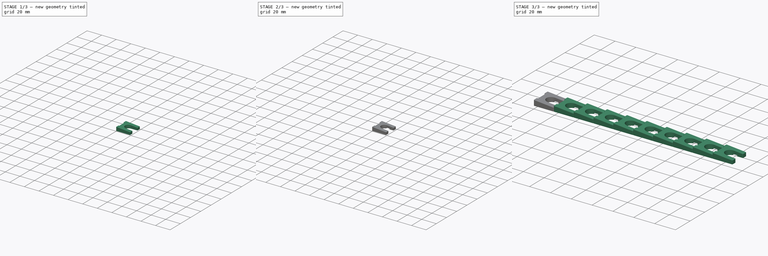
[diagram: build sequence overview — one tinted view per stage of 3, left to right]
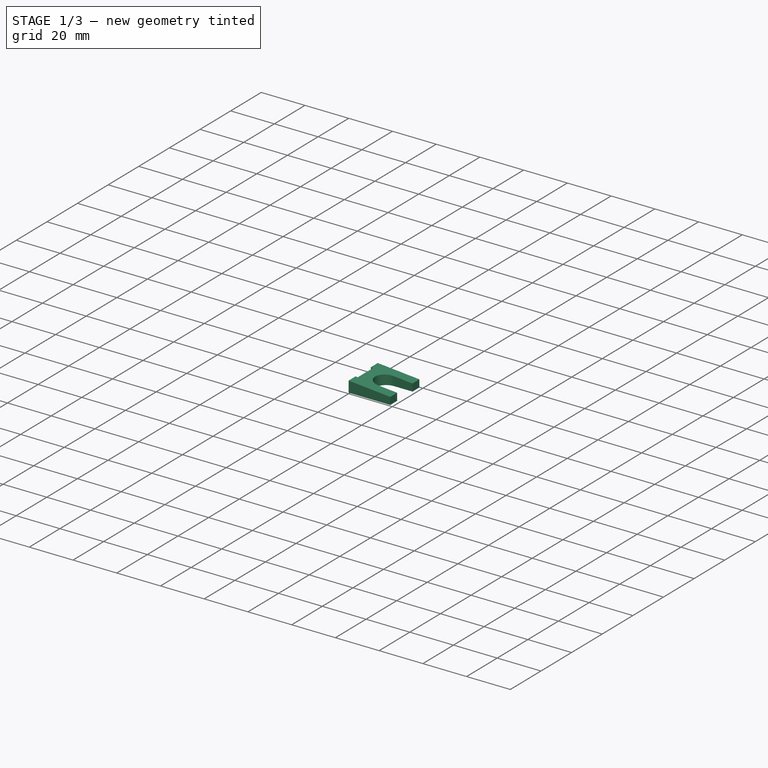
[diagram: stage 1 of 3 — iso view after this stage's code; geometry added in this stage tinted green]
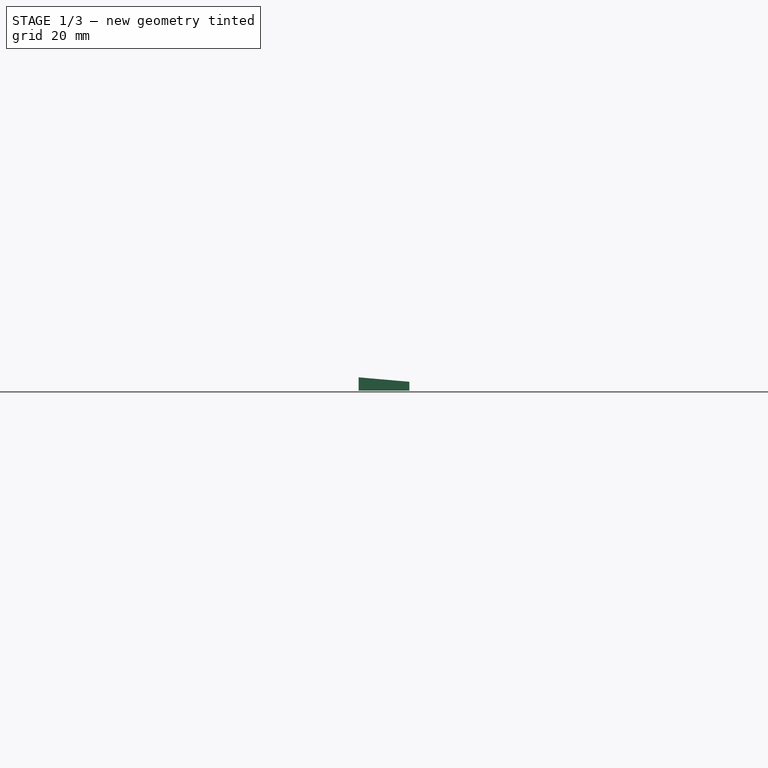
[diagram: stage 1 of 3 — front view after this stage's code; geometry added in this stage tinted green]
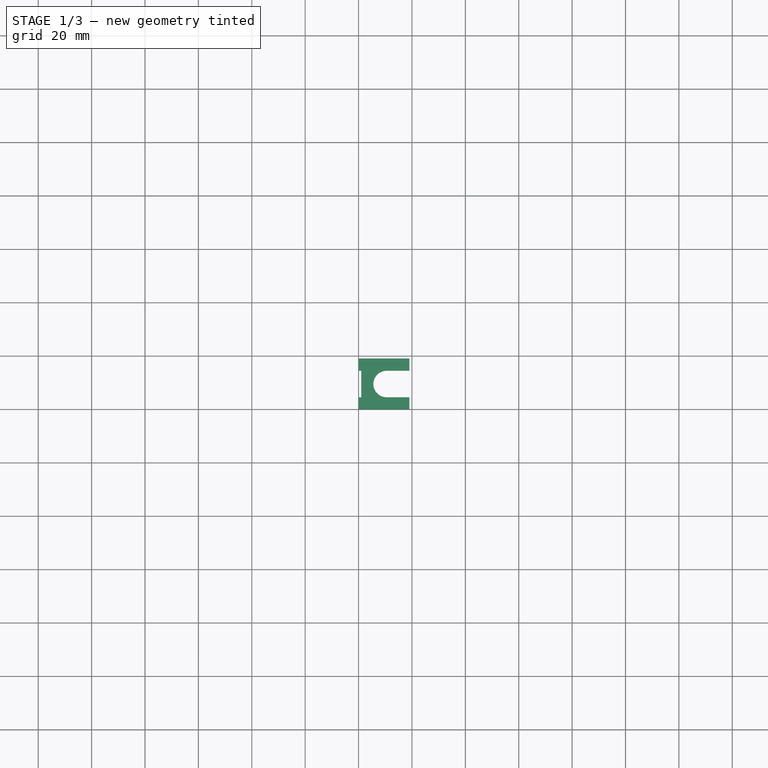
[diagram: stage 1 of 3 — top view after this stage's code; geometry added in this stage tinted green]
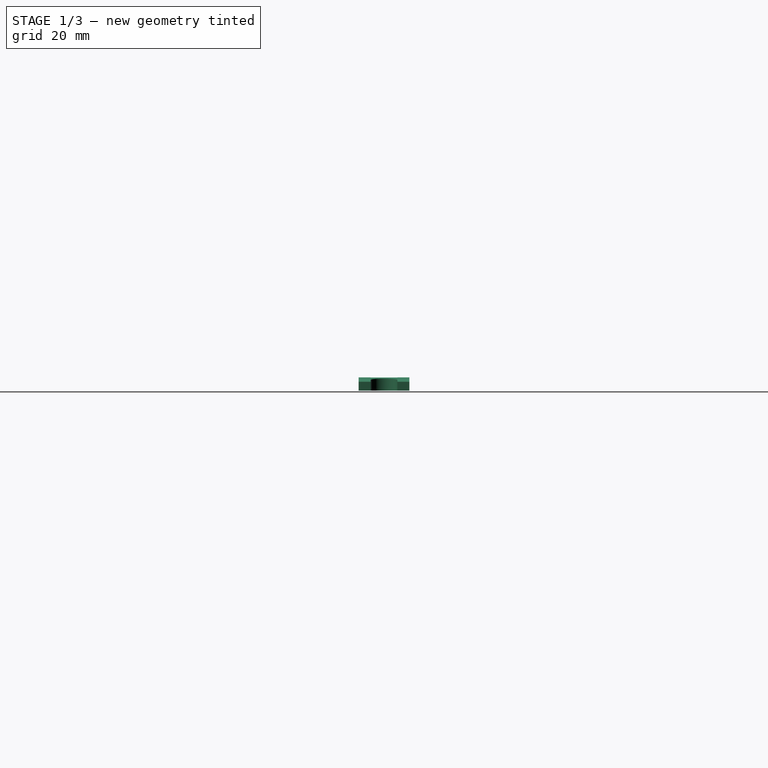
[diagram: stage 1 of 3 — right view after this stage's code; geometry added in this stage tinted green]
FCSTD DOCUMENT  (FreeCAD 0.21R33668 +26 (Git))
Label: ConsoleKeyPads
License: All rights reserved
LicenseURL: http://en.wikipedia.org/wiki/All_rights_reserved
objects: Sketcher::SketchObject×3, Part::FeaturePython×2, PartDesign::Pocket×2, PartDesign::Pad×1, PartDesign::Draft×1, PartDesign::Fillet×1, PartDesign::Body×1
note: 16 computed .brp shape members not serialized (recipe doc carries the construction recipe); baked Part::Feature solids carry a one-line shape summary decoded from their .brp

FEATURE [Sketcher::SketchObject] Sketch
  FullyConstrained = true
  MapMode = 5
  Support = -> [XY_Plane]
  expr: Constraints[10] = 9.53 + 1
  sketch-geometry (12):
    g0: LineSegment StartX=0 StartY=19.05 StartZ=0 EndX=19.05 EndY=19.05 EndZ=0
    g1: ArcOfCircle CenterX=10.53 CenterY=9.525 CenterZ=0 NormalX=0 NormalY=0 NormalZ=1 AngleXU=0 Radius=5 StartAngle=1.5708 EndAngle=4.71239
    g2: LineSegment StartX=19.05 StartY=0 StartZ=0 EndX=0 EndY=0 EndZ=0
    g3: LineSegment StartX=19.05 StartY=19.05 StartZ=0 EndX=19.05 EndY=14.525 EndZ=0
    g4: LineSegment StartX=19.05 StartY=14.525 StartZ=0 EndX=10.53 EndY=14.525 EndZ=0
    g5: LineSegment StartX=19.05 StartY=4.525 StartZ=0 EndX=19.05 EndY=0 EndZ=0
    g6: LineSegment StartX=10.53 StartY=4.525 StartZ=0 EndX=19.05 EndY=4.525 EndZ=0
    g7: LineSegment StartX=0 StartY=14.525 StartZ=0 EndX=0 EndY=19.05 EndZ=0
    g8: LineSegment StartX=1 StartY=14.525 StartZ=0 EndX=0 EndY=14.525 EndZ=0
    g9: LineSegment StartX=1 StartY=4.525 StartZ=0 EndX=1 EndY=14.525 EndZ=0
    g10: LineSegment StartX=0 StartY=0 StartZ=0 EndX=0 EndY=4.525 EndZ=0
    g11: LineSegment StartX=0 StartY=4.525 StartZ=0 EndX=1 EndY=4.525 EndZ=0
  constraints (36):
    c: Coincident(g-1,g10)
    c: PointOnObject(g7,g-2)
    c: Coincident(g7,g0)
    c: Horizontal(g0)
    c: Coincident(g0,g3)
    c: PointOnObject(g5,g-1)
    c: Coincident(g5,g2)
    c: Coincident(g2,g10)
    c: Vertical(g1,g1)
    c: DistanceY(g10,g7) = 19.05
    c: DistanceX(g10,g1) = 10.53
    c: Coincident(g3,g4)
    c: Vertical(g3)
    c: Horizontal(g4)
    c: Coincident(g6,g5)
    c: Vertical(g5)
    c: Horizontal(g6)
    c: Vertical(g3,g5)
    c: DistanceY(g6,g4) = 10
    c: Equal(g3,g5)
    c: Vertical(g1,g1)
    c: Coincident(g4,g1)
    c: Coincident(g1,g6)
    c: Coincident(g8,g7)
    c: Coincident(g9,g8)
    c: Coincident(g11,g9)
    c: Coincident(g10,g11)
    c: Horizontal(g8)
    c: Horizontal(g11)
    c: Vertical(g9)
    c: Horizontal(g8,g1)
    c: Horizontal(g9,g1)
    c: DistanceX(g8,g8) = 1
    c: Vertical(g7)
    c: Vertical(g10)
    c: DistanceX(g2,g2) = 19.05
FEATURE [PartDesign::Pad] Pad
  Direction = (0,0,1)
  Length = 5
  Length2 = 10
  Profile = -> Sketch
  ReferenceAxis = -> Sketch [N_Axis]
  Type = 0
FEATURE [PartDesign::Draft] Draft
  Angle = 5
  Base = -> Pad [Face14]
  BaseFeature = -> Pad
  NeutralPlane = -> Pad [Face12]
  Reversed = true
  SupportTransform = false
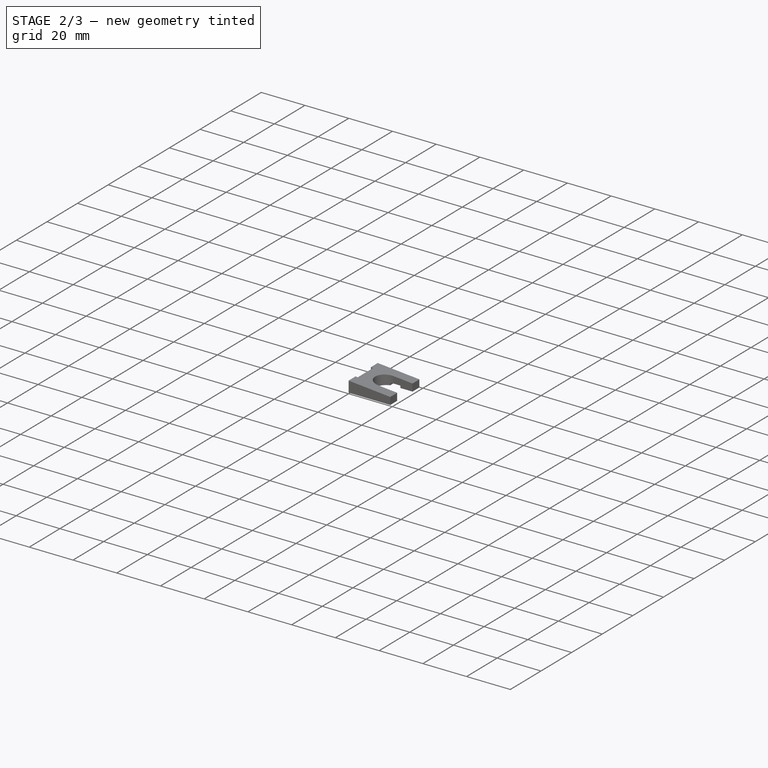
[diagram: stage 2 of 3 — iso view after this stage's code; geometry added in this stage tinted green]
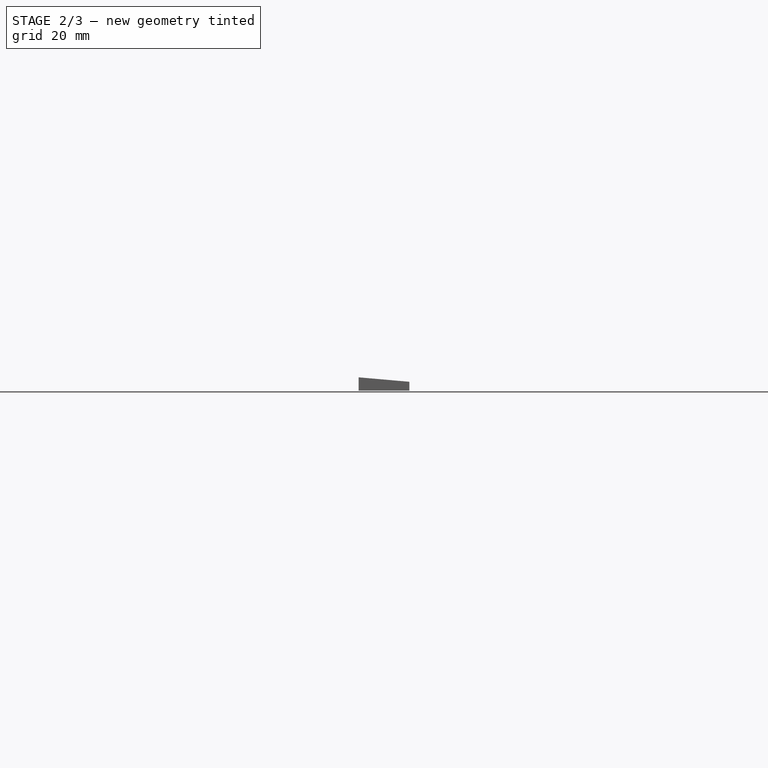
[diagram: stage 2 of 3 — front view after this stage's code; geometry added in this stage tinted green]
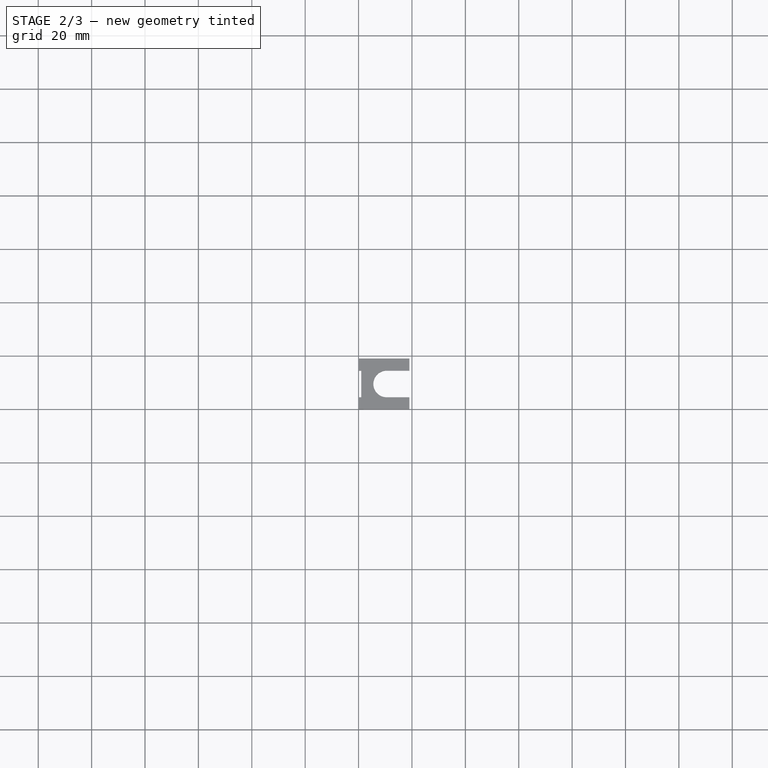
[diagram: stage 2 of 3 — top view after this stage's code; geometry added in this stage tinted green]
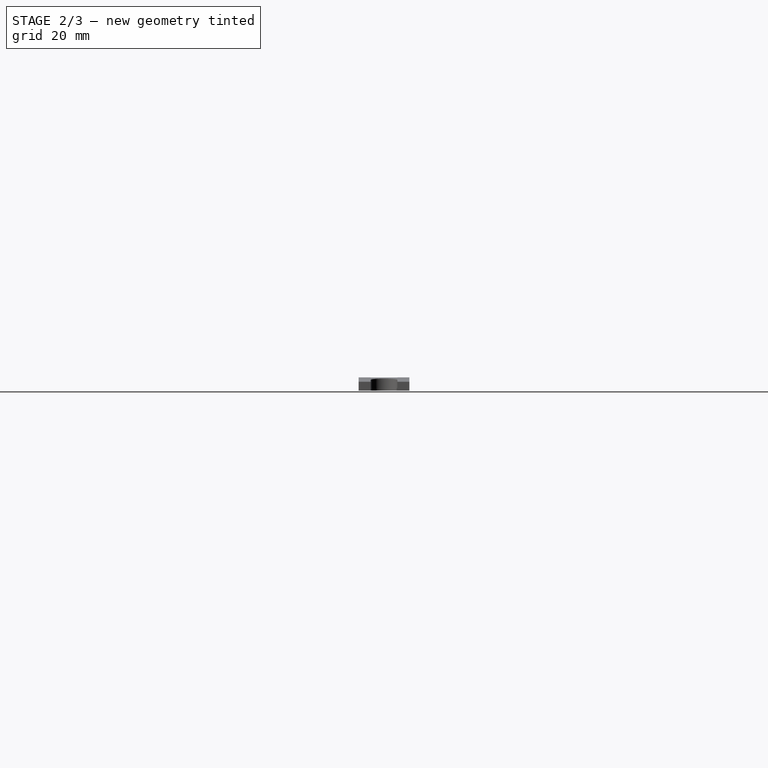
[diagram: stage 2 of 3 — right view after this stage's code; geometry added in this stage tinted green]
FEATURE [Part::FeaturePython] LinearArray  # WARN: FeaturePython — macro-defined, semantics opaque (R4)
  Alignment = 0
  CellStart = A1
  Count = 10
  Dir = (1,0,0)
  DirIsDriven = true
  DistributionLaw = 0
  DrivenProperty = 1
  EndInclusive = true
  ExposePlacement = false
  GeneratorMode = 1
  MarkerShape = 1
  MarkerSize = 0
  NumElements = 10
  OrientMode = 1
  Point = (0,0,0)
  PointIsDriven = true
  Reverse = false
  SpanEnd = 20
  SpanStart = 0
  Step = 19.05
  Type = lattice2LinearArray.LinearArray
  VSGVersion = 1
  Values = 0.0 | 19.05 | 38.1 | 57.150000000000006 | 76.2 | 95.25 | 114.30000000000001 | 133.35 | 152.4 | 171.45000000000002
  ValuesSource = 2
  isLattice = 1
FEATURE [Sketcher::SketchObject] Sketch001  label="LedRecessSketch"
  FullyConstrained = true
  MapMode = 5
  Placement = pos=(0,0,0) rot=(1,0,0;3.14159rad)
  sketch-geometry (4):
    g0: LineSegment StartX=9.025 StartY=-19.05 StartZ=0 EndX=13.525 EndY=-19.05 EndZ=0
    g1: LineSegment StartX=13.525 StartY=-19.05 StartZ=0 EndX=13.525 EndY=-13.525 EndZ=0
    g2: LineSegment StartX=13.525 StartY=-13.525 StartZ=0 EndX=9.025 EndY=-13.525 EndZ=0
    g3: LineSegment StartX=9.025 StartY=-13.525 StartZ=0 EndX=9.025 EndY=-19.05 EndZ=0
  constraints (12):
    c: Coincident(g0,g1)
    c: Coincident(g1,g2)
    c: Coincident(g2,g3)
    c: Coincident(g3,g0)
    c: Horizontal(g0)
    c: Horizontal(g2)
    c: Vertical(g1)
    c: Vertical(g3)
    c: DistanceY(g0,g-1) = 19.05
    c: DistanceY(g2,g-1) = 13.525
    c: DistanceX(g0,g0) = 4.5
    c: DistanceX(g-1,g2) = 9.025
FEATURE [Sketcher::SketchObject] Sketch002
  ExternalGeometry = -> [Draft]
  FullyConstrained = true
  MapMode = 5
  Placement = pos=(0.43412,0,4.96202) rot=(0,1,0;0.087266rad)
  Support = -> [Draft]
  sketch-geometry (4):
    g0: ArcOfCircle CenterX=10.1344 CenterY=9.525 CenterZ=0 NormalX=0 NormalY=0 NormalZ=1 AngleXU=0 Radius=5 StartAngle=1.5708 EndAngle=4.71238
    g1: LineSegment StartX=10.1344 StartY=14.525 StartZ=0 EndX=18.687 EndY=14.525 EndZ=0
    g2: LineSegment StartX=18.687 StartY=14.525 StartZ=0 EndX=18.687 EndY=4.525 EndZ=0
    g3: LineSegment StartX=18.687 StartY=4.525 StartZ=0 EndX=10.1344 EndY=4.525 EndZ=0
  constraints (9):
    c: Coincident(g0,g-3)
    c: Coincident(g0,g-4)
    c: Tangent(g0,g1) = 1.5708
    c: Coincident(g1,g2)
    c: Coincident(g2,g-5)
    c: Vertical(g2)
    c: Coincident(g2,g3)
    c: Coincident(g3,g0)
    c: Horizontal(g3)
FEATURE [PartDesign::Pocket] Pocket001
  BaseFeature = -> Draft
  Direction = (-0.0871557,0,-0.996195)
  Length = 5
  Length2 = 5
  Profile = -> Sketch002
  ReferenceAxis = -> Sketch002 [N_Axis]
  Type = 1
FEATURE [PartDesign::Pocket] Pocket  label="LedRecessPocket"
  BaseFeature = -> Pocket001
  Direction = (0,0,1)
  Length = 1
  Length2 = 5
  Profile = -> Sketch001
  ReferenceAxis = -> Sketch001 [N_Axis]
  Refine = true
  Type = 0
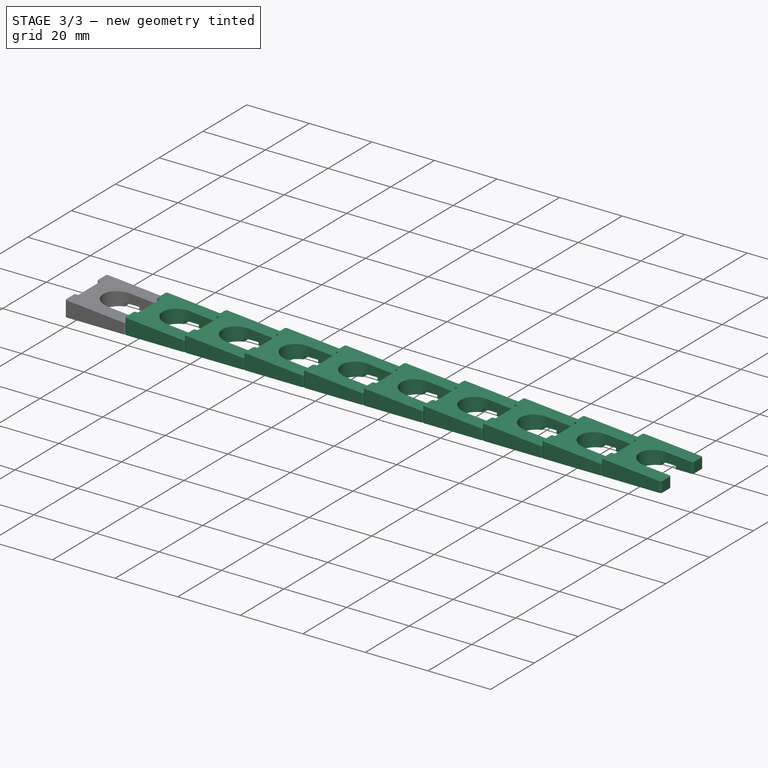
[diagram: stage 3 of 3 — iso view after this stage's code; geometry added in this stage tinted green]
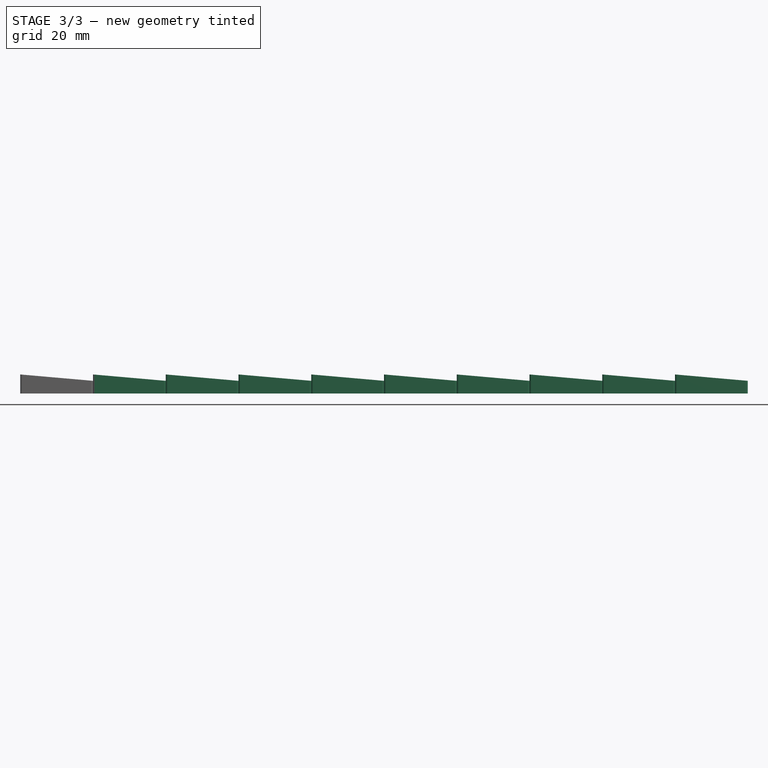
[diagram: stage 3 of 3 — front view after this stage's code; geometry added in this stage tinted green]
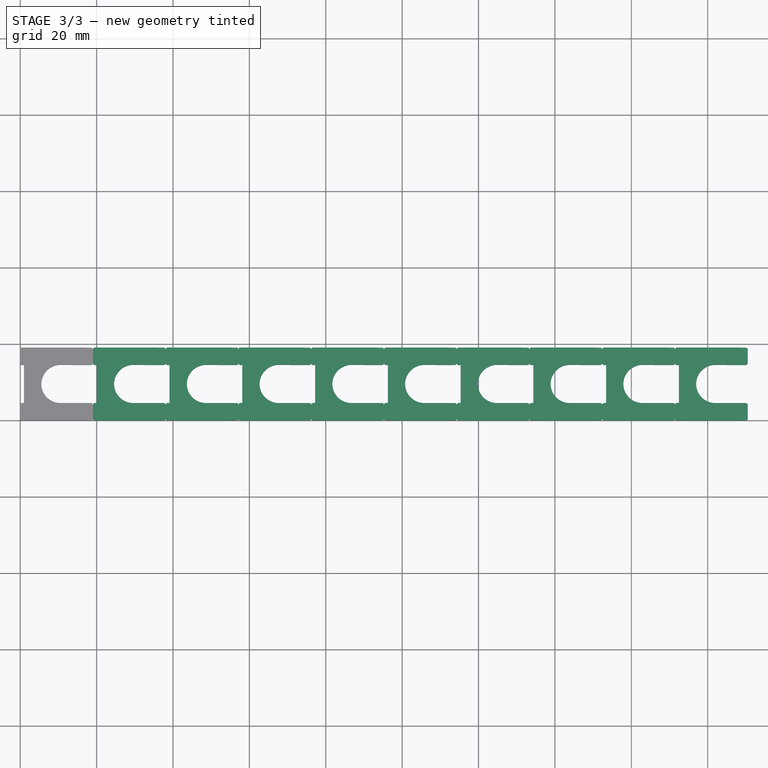
[diagram: stage 3 of 3 — top view after this stage's code; geometry added in this stage tinted green]
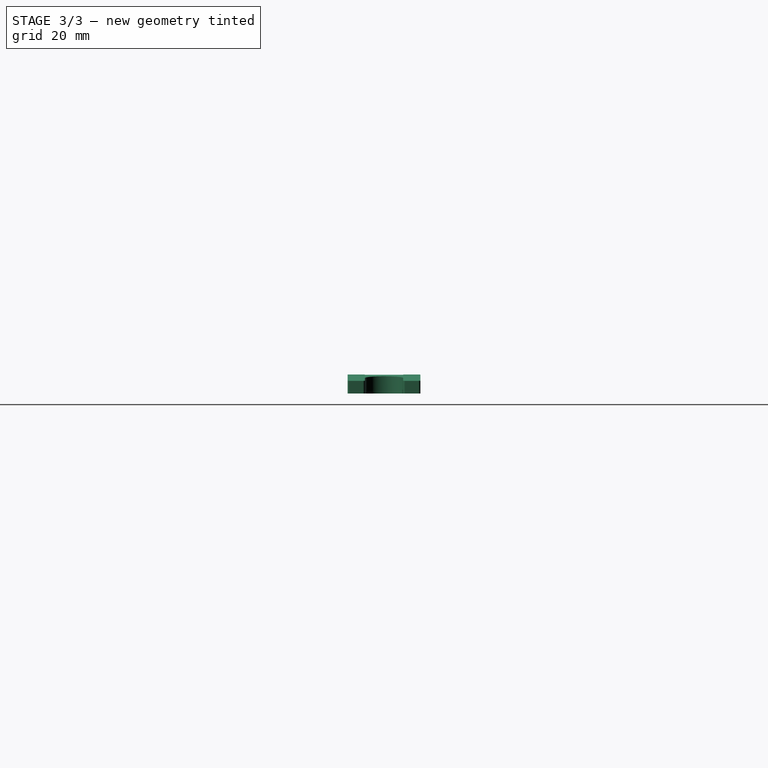
[diagram: stage 3 of 3 — right view after this stage's code; geometry added in this stage tinted green]
FEATURE [PartDesign::Fillet] Fillet
  Base = -> Pocket [Edge8,Edge37,Edge34,Edge6,Edge32,Edge39,Edge19,Edge35]
  BaseFeature = -> Pocket
  Radius = 0.5
  SupportTransform = false
  UseAllEdges = false
FEATURE [PartDesign::Body] Body  label="SingleKeyPadBody"
  Group = -> [Sketch,Pad,Draft,Sketch001,Sketch002,Pocket001,Pocket,Fillet]
  Origin = -> Origin
  Tip = -> Fillet
FEATURE [Part::FeaturePython] Populate001  label="Populate LinearArray with Fillet001"  # WARN: FeaturePython — macro-defined, semantics opaque (R4)
  Copying = 0
  ExposePlacement = false
  MarkerShape = 1
  MarkerSize = 0
  NumElements = 0
  Object = -> Fillet
  OutputCompounding = 1
  PlacementsTo = -> LinearArray
  Referencing = 0
  Type = lattice2PopulateCopies.LatticePopulateCopies
  isLattice = 0
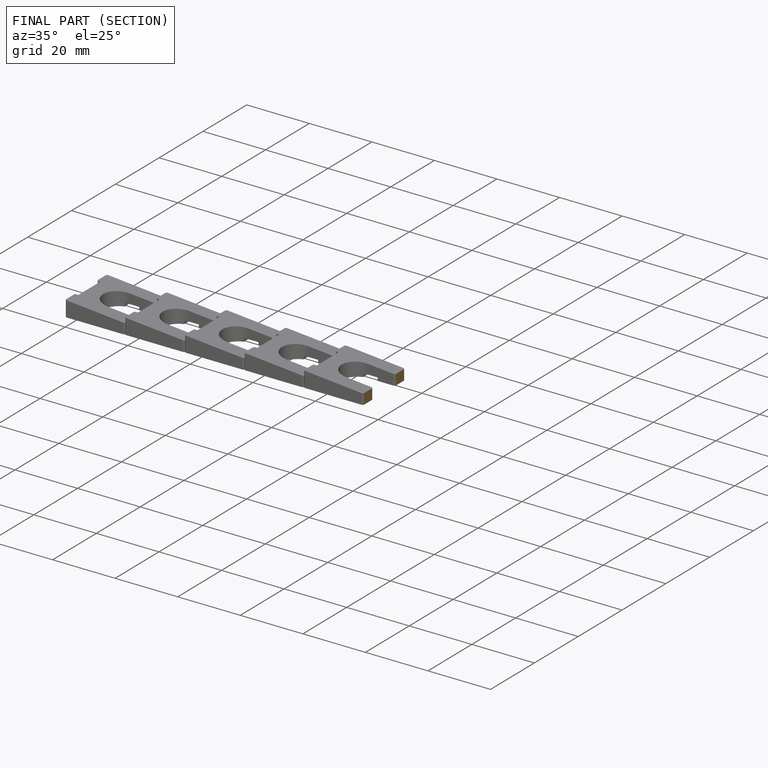
[diagram: finished part — half-section view (interior)]
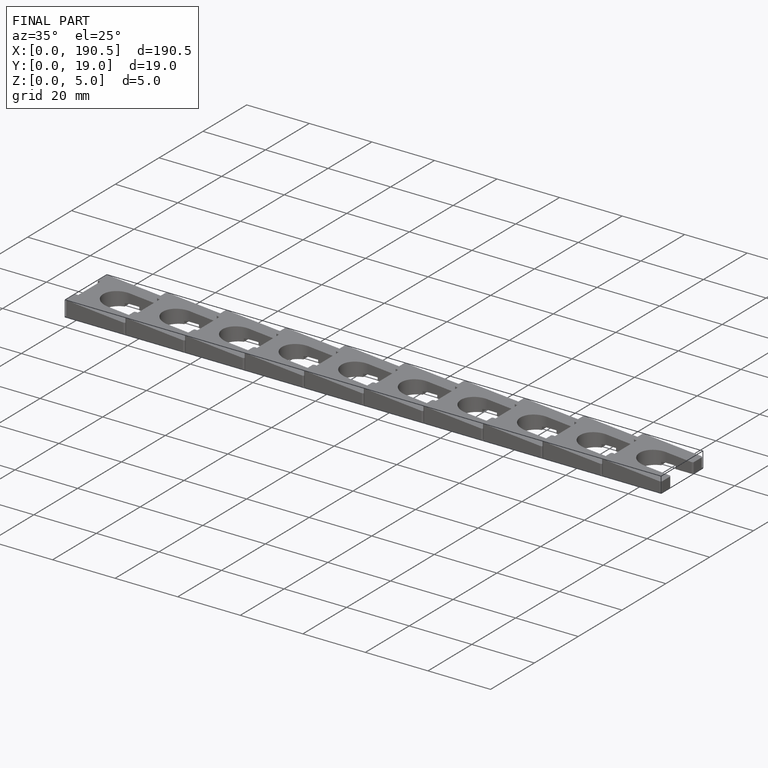
[diagram: finished part — iso view with bounding-box wireframe]
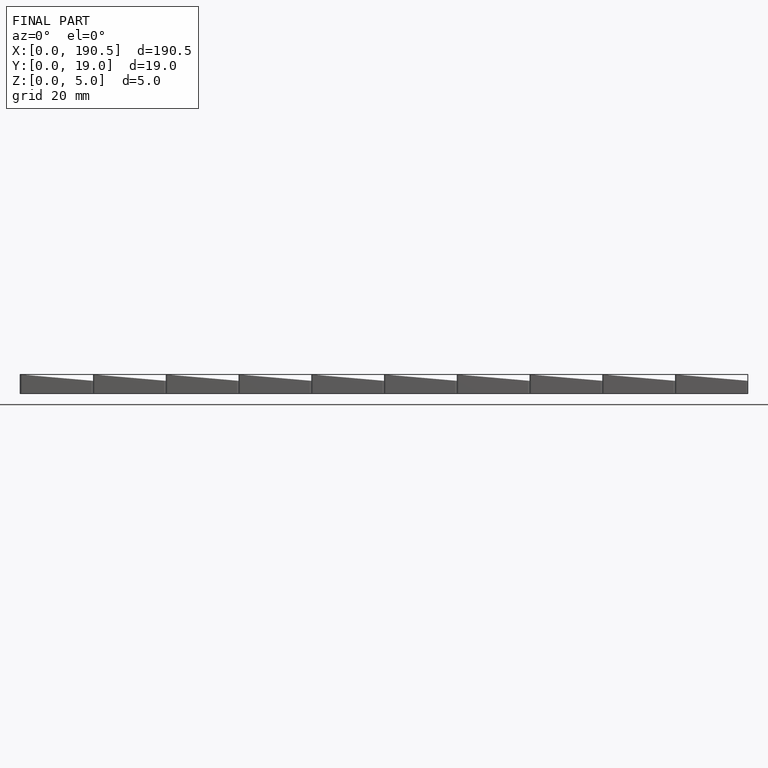
[diagram: finished part — front view with bounding-box wireframe]
